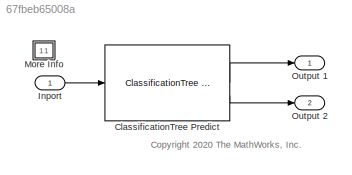
MODEL slx_67fbeb65008a
KIND model
CONFIG AbsTol = auto
CONFIG EnableMultiTasking = off
CONFIG FixedStep = auto
CONFIG MaxStep = auto
CONFIG MinStep = auto
CONFIG PreLoadFcn = if ~exist("treeMdl","var")\n\nload ionosphere\n\nprsntX = X(1:300,:);\nprsntY = Y(1:300);\nftrX = X(301:end,:);\nftrY = Y(301:end);\n\ntrainedModel = trainClassificationTreeModel(prsntX,prsntY);\ntreeMdl = trainedModel.ClassificationTree;\n\nradarReturnInput.time = (0:50)';\nradarReturnInput.signals(1).values = ftrX;\nradarReturnInput.signals(1).dimensions = size(ftrX,2);\n\nend
CONFIG RelTol = 1e-3
CONFIG SampleTimeConstraint = Unconstrained
CONFIG SolverName = FixedStepDiscrete
CONFIG StartTime = 0.0
CONFIG StopTime = radarReturnInput.time(end)
BLOCK [Reference] ClassificationTree Predict  REF=statsLibrary/Classification/ClassificationTree Predict
  SourceBlock = statsLibrary/Classification/ClassificationTree Predict
  SourceType = ClassificationTree Predict
BLOCK [Inport] Inport
  PortDimensions = 34
BLOCK [SubSystem] More Info
  OpenFcn = showExample('stats/PredictClassLabelsUsingClassificationTreePredictBlockExample')
BLOCK [Outport] Output 1
BLOCK [Outport] Output 2
  Port = 2
ANNOTATION (root): <copyright redacted>
LINE ClassificationTree Predict:1 -> Output 1:1
LINE ClassificationTree Predict:2 -> Output 2:1
LINE Inport:1 -> ClassificationTree Predict:1
